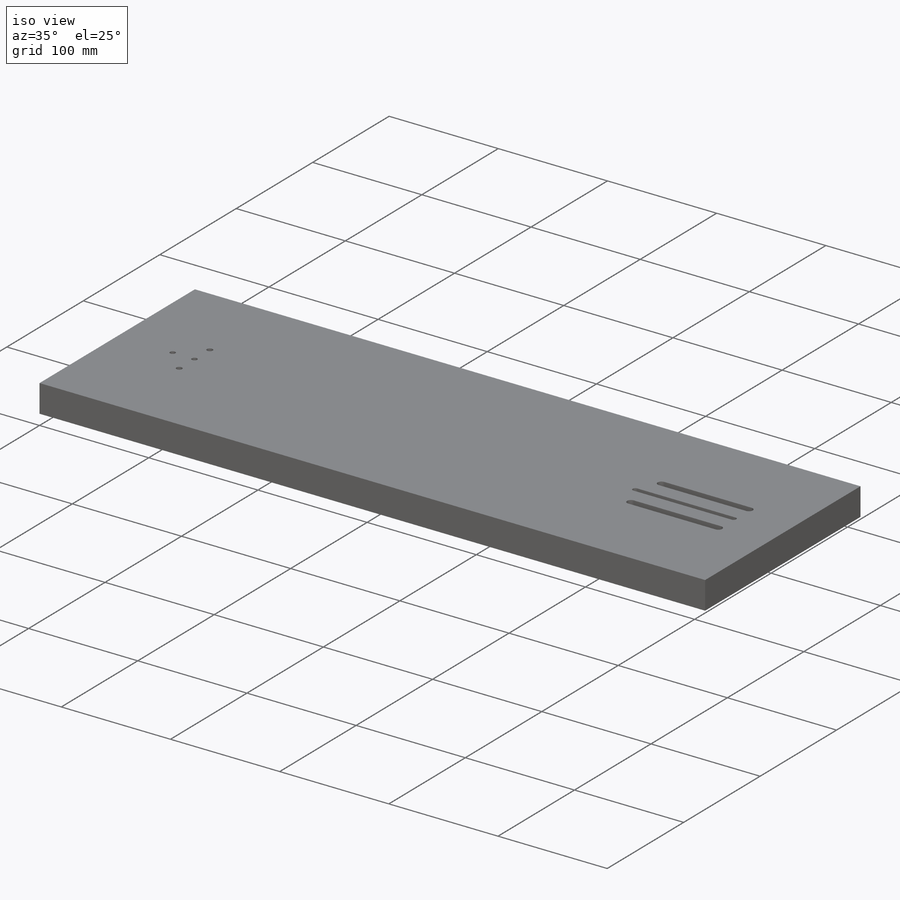
[diagram: iso view]
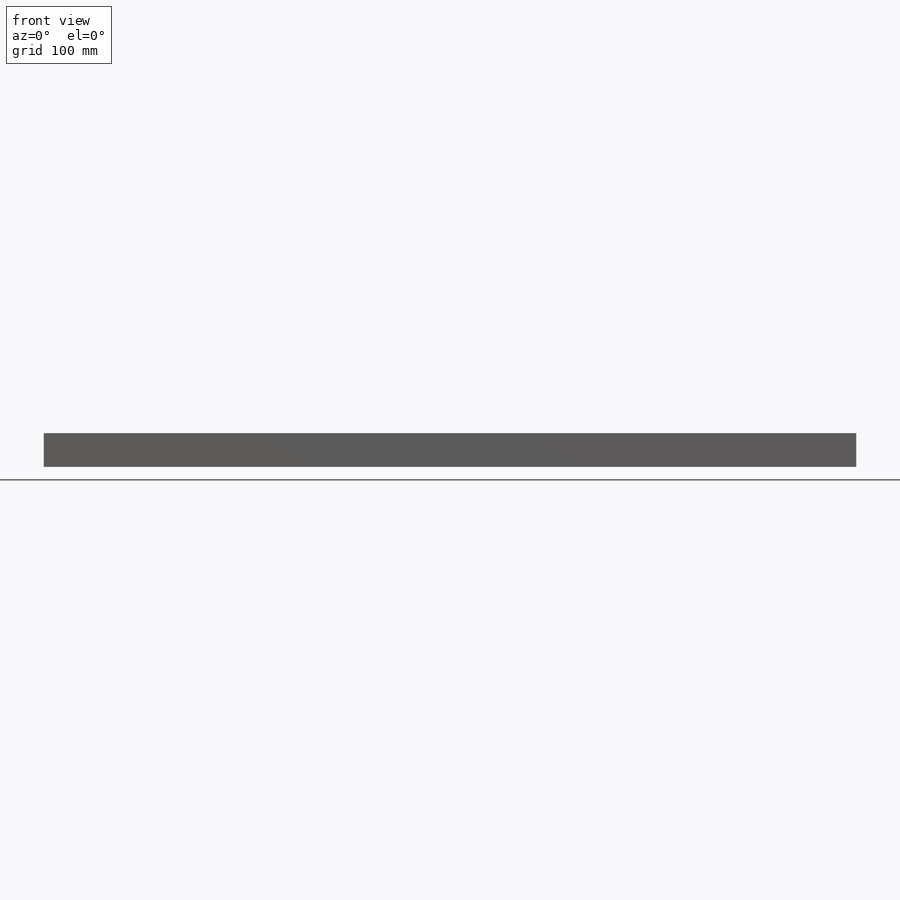
[diagram: front view]
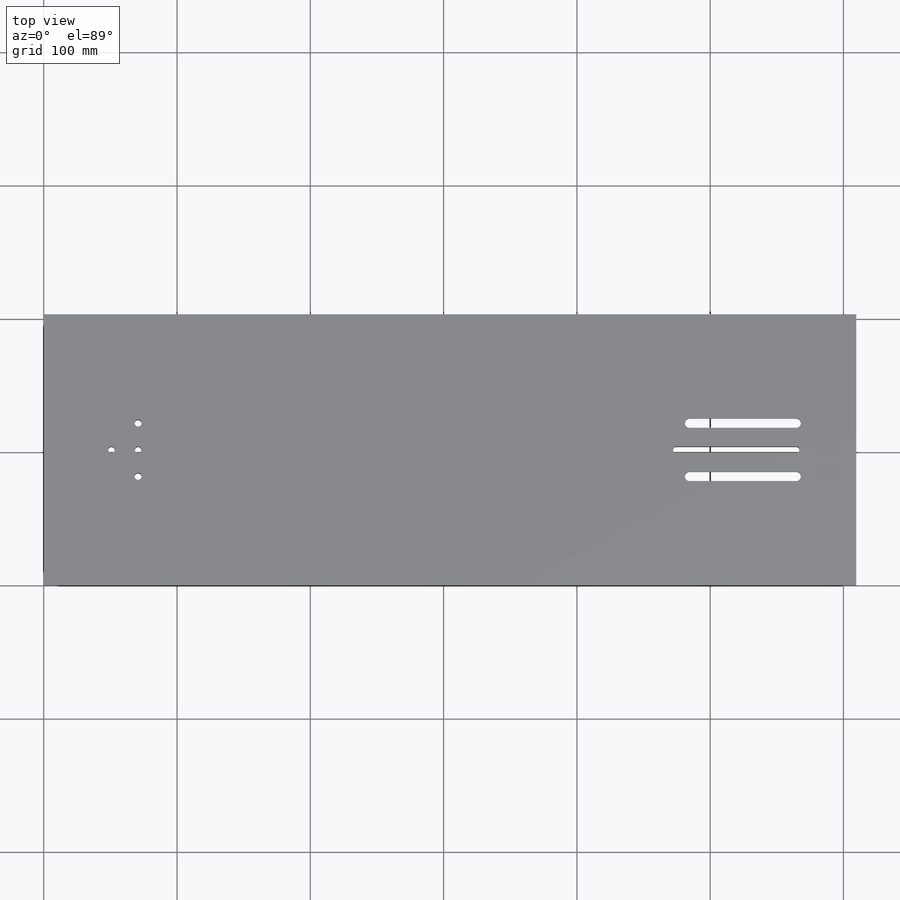
[diagram: top view]
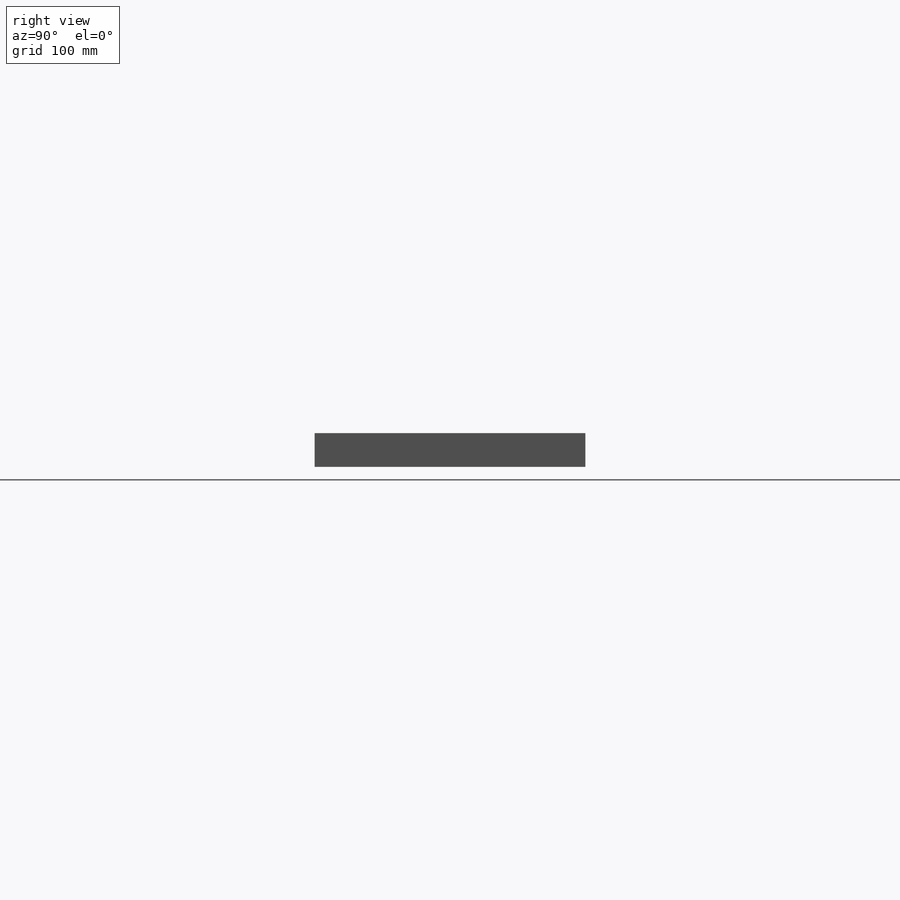
[diagram: right view]
SOLIDWORKS PART (.sldprt)
format: sldprt  version: not decoded by parser v0  size: 214,528 bytes
history: native  units: mm
features: sketch x3, cut_extrude x2, material x1, extrude x1 (+11 scaffold rows collapsed)
feature tree (18):
  scaffold x11  (default folders/planes/origin — collapsed)
  material  "Material <not specified>"
  sketch  "Sketch1"  dims[D1=609.6mm]
  extrude  "Boss-Extrude1"  Depth=25.4mm
  sketch  "Sketch2"  dims[c1.D1=4.763mm c1.D2=4.763mm c1.D3=4.763mm c1.D4=4.763mm c1.D5=4.763mm c1.D6=4.763mm c2.D2=4.763mm c2.D7=4.763mm c3.D2=4.763mm c3.D3=5.105mm c3.D4=~5.667897mm c3.D1=20.0mm c4.D2=20.0mm c4.D3=20.0mm c4.D4=20.0mm c4.D5=20.0mm c4.D6=20.0mm c5.D2=20.0mm c5.D7=50.8mm c6.D2=20.0mm c6.D3=20.0mm c6.D4=90.0mm]
  cut_extrude  "Cut-Extrude2"  [1 undecoded]
  sketch  "Sketch7"  dims[D1=~4.909724mm]
  cut_extrude  "Cut-Extrude3"  Depth=8mm
decode coverage: 5 of 6 modeling features carry decoded parameters
note: ~ marks probable driven/reference dimensions
note: 1 parameter value undecoded
note: suppression state not decoded; provenance and decode notes live in map.json
